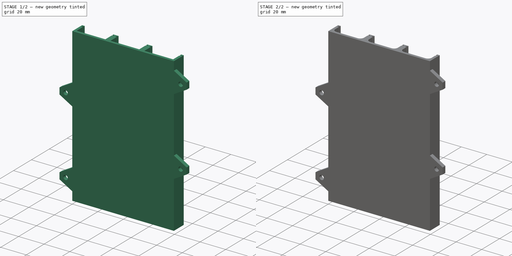
[diagram: build sequence overview — one tinted view per stage of 2, left to right]
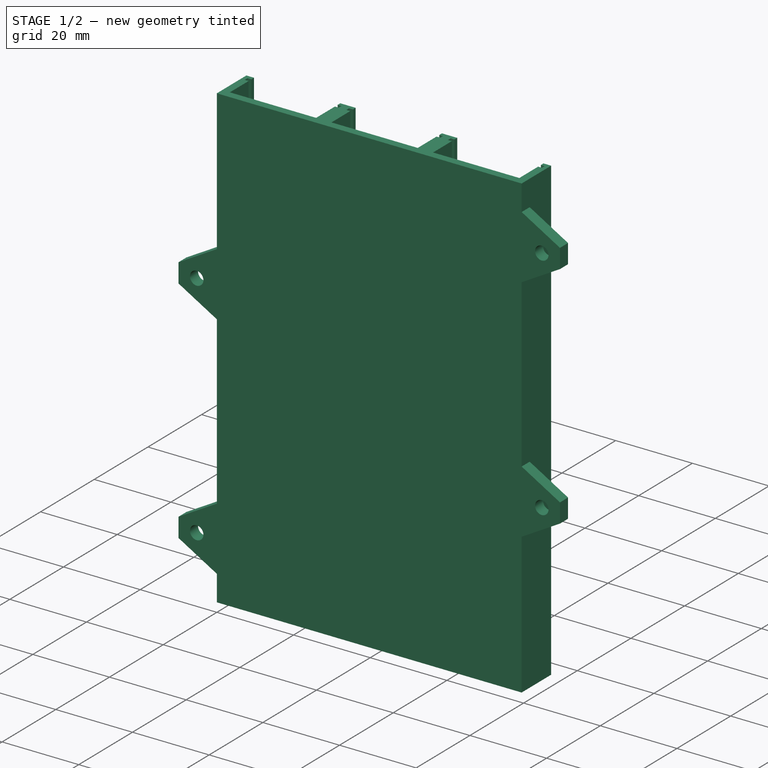
[diagram: stage 1 of 2 — iso view after this stage's code; geometry added in this stage tinted green]
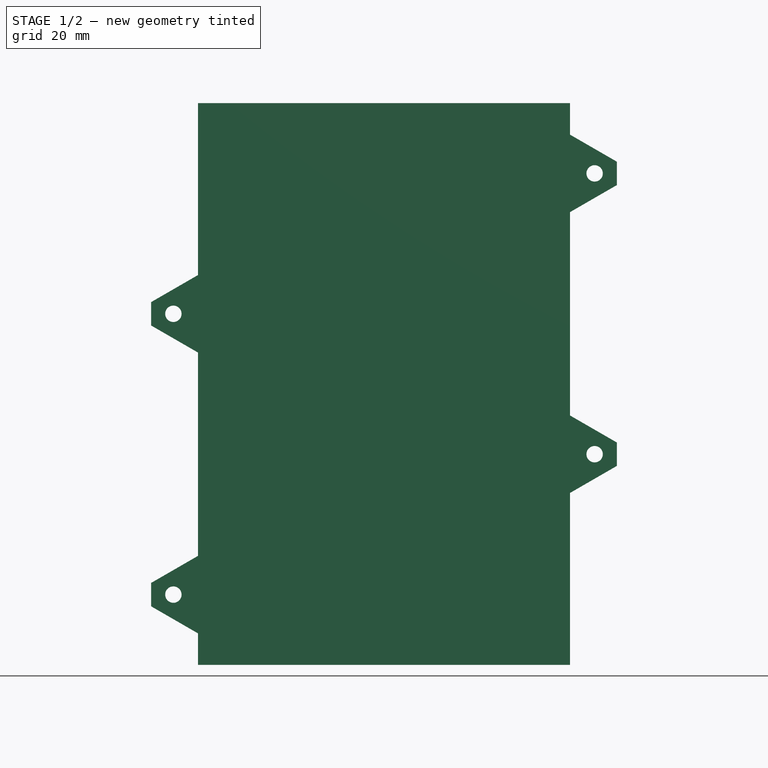
[diagram: stage 1 of 2 — front view after this stage's code; geometry added in this stage tinted green]
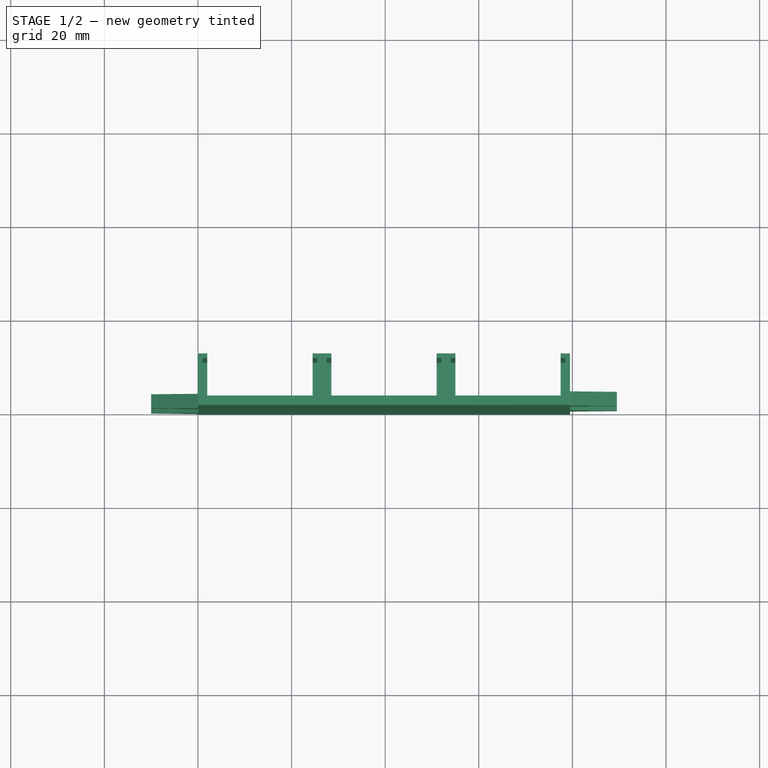
[diagram: stage 1 of 2 — top view after this stage's code; geometry added in this stage tinted green]
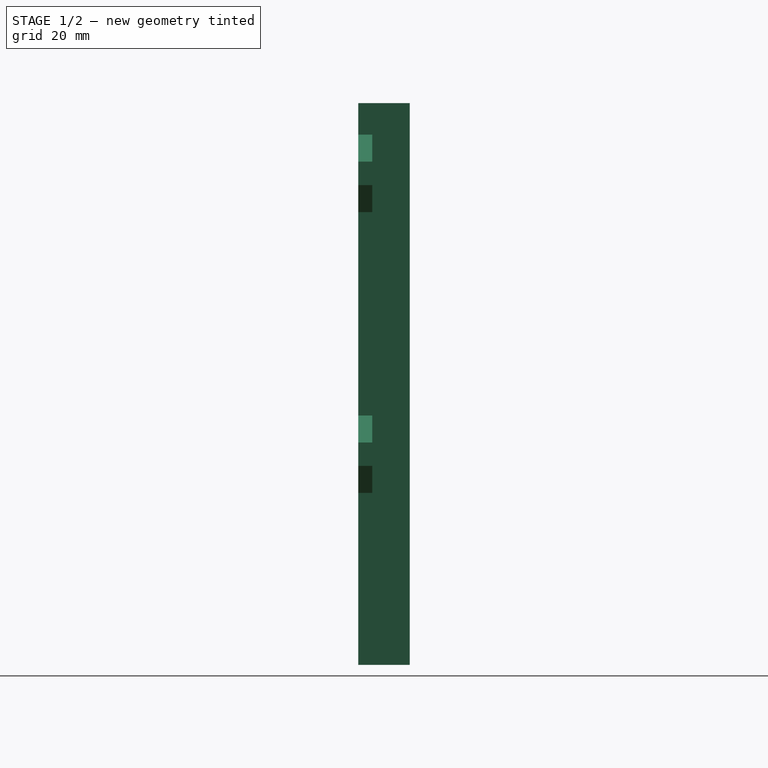
[diagram: stage 1 of 2 — right view after this stage's code; geometry added in this stage tinted green]
FCSTD DOCUMENT  (FreeCAD 0.19R24291 (Git))
Label: FDM-9006_24mm-strip-feeder
License: All rights reserved
LicenseURL: http://en.wikipedia.org/wiki/All_rights_reserved
objects: Sketcher::SketchObject×2, PartDesign::Pad×2, PartDesign::Fillet×1, Part::Part2DObjectPython×1, PartDesign::Plane×1, PartDesign::Body×1
note: 11 computed .brp shape members not serialized (recipe doc carries the construction recipe); baked Part::Feature solids carry a one-line shape summary decoded from their .brp

FEATURE [Sketcher::SketchObject] Sketch
  FullyConstrained = true
  MapMode = 5
  Support = -> [XY_Plane]
  sketch-geometry (40):
    g0: LineSegment StartX=0 StartY=0 StartZ=0 EndX=79.5 EndY=0 EndZ=0
    g1: LineSegment StartX=28.5 StartY=11 StartZ=0 EndX=24.5 EndY=11 EndZ=0
    g2: LineSegment StartX=24.5 StartY=11 StartZ=0 EndX=24.5 EndY=10 EndZ=0
    g3: LineSegment StartX=24.5 StartY=10 StartZ=0 EndX=25.5 EndY=10 EndZ=0
    g4: LineSegment StartX=25.5 StartY=10 StartZ=0 EndX=25.5 EndY=9 EndZ=0
    g5: LineSegment StartX=25.5 StartY=9 StartZ=0 EndX=24.5 EndY=9 EndZ=0
    g6: LineSegment StartX=24.5 StartY=9 StartZ=0 EndX=24.5 EndY=2 EndZ=0
    g7: LineSegment StartX=24.5 StartY=2 StartZ=0 EndX=2 EndY=2 EndZ=0
    g8: LineSegment StartX=2 StartY=2 StartZ=0 EndX=2 EndY=9 EndZ=0
    g9: LineSegment StartX=2 StartY=9 StartZ=0 EndX=1 EndY=9 EndZ=0
    g10: LineSegment StartX=1 StartY=9 StartZ=0 EndX=1 EndY=10 EndZ=0
    g11: LineSegment StartX=1 StartY=10 StartZ=0 EndX=2 EndY=10 EndZ=0
    g12: LineSegment StartX=2 StartY=10 StartZ=0 EndX=2 EndY=11 EndZ=0
    g13: LineSegment StartX=2 StartY=11 StartZ=0 EndX=0 EndY=11 EndZ=0
    g14: LineSegment StartX=0 StartY=11 StartZ=0 EndX=0 EndY=0 EndZ=0
    g15: LineSegment StartX=51 StartY=11 StartZ=0 EndX=51 EndY=10 EndZ=0
    g16: LineSegment StartX=51 StartY=10 StartZ=0 EndX=52 EndY=10 EndZ=0
    g17: LineSegment StartX=52 StartY=10 StartZ=0 EndX=52 EndY=9 EndZ=0
    g18: LineSegment StartX=52 StartY=9 StartZ=0 EndX=51 EndY=9 EndZ=0
    g19: LineSegment StartX=51 StartY=9 StartZ=0 EndX=51 EndY=2 EndZ=0
    g20: LineSegment StartX=51 StartY=2 StartZ=0 EndX=28.5 EndY=2 EndZ=0
    g21: LineSegment StartX=28.5 StartY=2 StartZ=0 EndX=28.5 EndY=9 EndZ=0
    g22: LineSegment StartX=28.5 StartY=9 StartZ=0 EndX=27.5 EndY=9 EndZ=0
    g23: LineSegment StartX=27.5 StartY=9 StartZ=0 EndX=27.5 EndY=10 EndZ=0
    g24: LineSegment StartX=27.5 StartY=10 StartZ=0 EndX=28.5 EndY=10 EndZ=0
    g25: LineSegment StartX=28.5 StartY=10 StartZ=0 EndX=28.5 EndY=11 EndZ=0
    g26: LineSegment StartX=77.5 StartY=11 StartZ=0 EndX=77.5 EndY=10 EndZ=0
    g27: LineSegment StartX=77.5 StartY=10 StartZ=0 EndX=78.5 EndY=10 EndZ=0
    g28: LineSegment StartX=78.5 StartY=10 StartZ=0 EndX=78.5 EndY=9 EndZ=0
    g29: LineSegment StartX=78.5 StartY=9 StartZ=0 EndX=77.5 EndY=9 EndZ=0
    g30: LineSegment StartX=77.5 StartY=9 StartZ=0 EndX=77.5 EndY=2 EndZ=0
    g31: LineSegment StartX=55 StartY=2 StartZ=0 EndX=55 EndY=9 EndZ=0
    g32: LineSegment StartX=55 StartY=9 StartZ=0 EndX=54 EndY=9 EndZ=0
    g33: LineSegment StartX=54 StartY=9 StartZ=0 EndX=54 EndY=10 EndZ=0
    g34: LineSegment StartX=54 StartY=10 StartZ=0 EndX=55 EndY=10 EndZ=0
    g35: LineSegment StartX=55 StartY=10 StartZ=0 EndX=55 EndY=11 EndZ=0
    g36: LineSegment StartX=51 StartY=11 StartZ=0 EndX=55 EndY=11 EndZ=0
    g37: LineSegment StartX=55 StartY=2 StartZ=0 EndX=77.5 EndY=2 EndZ=0
    g38: LineSegment StartX=79.5 StartY=11 StartZ=0 EndX=79.5 EndY=0 EndZ=0
    g39: LineSegment StartX=77.5 StartY=11 StartZ=0 EndX=79.5 EndY=11 EndZ=0
  constraints (119):
    c: Coincident(g-1,g0)
    c: PointOnObject(g0,g-1)
    c: Horizontal(g1)
    c: Vertical(g2)
    c: Coincident(g2,g3)
    c: Horizontal(g3)
    c: Coincident(g3,g4)
    c: Vertical(g4)
    c: Coincident(g4,g5)
    c: Horizontal(g5)
    c: Coincident(g5,g6)
    c: Vertical(g6)
    c: Coincident(g6,g7)
    c: Horizontal(g7)
    c: Coincident(g7,g8)
    c: Vertical(g8)
    c: Coincident(g8,g9)
    c: Horizontal(g9)
    c: Coincident(g9,g10)
    c: Vertical(g10)
    c: Coincident(g10,g11)
    c: Coincident(g11,g12)
    c: Vertical(g12)
    c: Coincident(g12,g13)
    c: PointOnObject(g13,g-2)
    c: Horizontal(g13)
    c: Coincident(g13,g14)
    c: Coincident(g14,g0)
    c: Horizontal(g11)
    c: DistanceY(g0,g10) = 10
    c: DistanceY(g0,g13) = 11
    c: PointOnObject(g1,g13)
    c: PointOnObject(g2,g11)
    c: DistanceY(g10,g10) = 1
    c: PointOnObject(g5,g9)
    c: PointOnObject(g11,g8)
    c: PointOnObject(g2,g6)
    c: DistanceX(g10,g12) = 1
    c: DistanceY(g7,g11) = 8
    c: DistanceX(g9,g4) = 24.5
    c: DistanceX(g5,g5) = 1
    c: DistanceX(g13,g13) = 2
    c: Vertical(g15)
    c: Coincident(g15,g16)
    c: Horizontal(g16)
    c: Coincident(g16,g17)
    c: Vertical(g17)
    c: Coincident(g17,g18)
    c: Horizontal(g18)
    c: Coincident(g18,g19)
    c: Vertical(g19)
    c: Coincident(g19,g20)
    c: Horizontal(g20)
    c: Coincident(g20,g21)
    c: Vertical(g21)
    c: Coincident(g21,g22)
    c: Horizontal(g22)
    c: Coincident(g22,g23)
    c: Vertical(g23)
    c: Coincident(g23,g24)
    c: Coincident(g24,g25)
    c: Vertical(g25)
    c: Horizontal(g24)
    c: PointOnObject(g15,g24)
    c: Equal(g10,g23) = 1
    c: PointOnObject(g18,g22)
    c: PointOnObject(g24,g21)
    c: PointOnObject(g15,g19)
    c: DistanceX(g23,g25) = 1
    c: DistanceY(g20,g24) = 8
    c: DistanceX(g22,g17) = 24.5
    c: Equal(g5,g18) = 1
    c: Coincident(g1,g2)
    c: Coincident(g1,g25)
    c: PointOnObject(g23,g3)
    c: PointOnObject(g15,g1)
    c: DistanceX(g1,g1) = 4
    c: Vertical(g26)
    c: Coincident(g26,g27)
    c: Horizontal(g27)
    c: Coincident(g27,g28)
    c: Vertical(g28)
    c: Coincident(g28,g29)
    c: Horizontal(g29)
    c: Coincident(g29,g30)
    c: Vertical(g30)
    c: PointOnObject(g26,g30)
    c: Equal(g5,g29) = 1
    c: Vertical(g31)
    c: Coincident(g31,g32)
    c: Horizontal(g32)
    c: Coincident(g32,g33)
    c: Vertical(g33)
    c: Coincident(g33,g34)
    c: Coincident(g34,g35)
    c: Vertical(g35)
    c: Horizontal(g34)
    c: PointOnObject(g34,g31)
    c: DistanceX(g33,g35) = 1
    c: Coincident(g36,g15)
    c: Coincident(g36,g35)
    c: Horizontal(g36)
    c: Coincident(g37,g31)
    c: Coincident(g37,g30)
    c: Horizontal(g37)
    c: PointOnObject(g31,g20)
    c: PointOnObject(g32,g18)
    c: PointOnObject(g33,g16)
    c: PointOnObject(g29,g32)
    c: PointOnObject(g26,g34)
    c: DistanceX(g33,g27) = 24.5
    c: DistanceX(g36,g36) = 4
    c: PointOnObject(g26,g36)
    c: Coincident(g38,g0)
    c: Vertical(g38)
    c: Coincident(g39,g26)
    c: Coincident(g39,g38)
    c: Horizontal(g39)
    c: DistanceX(g39,g39) = 2
FEATURE [PartDesign::Pad] Pad
  Direction = (1,1,1)
  Length = 120
  Length2 = 100
  Profile = -> Sketch
  Type = 0
FEATURE [Sketcher::SketchObject] Sketch001
  FullyConstrained = true
  MapMode = 5
  Placement = pos=(0,0,0) rot=(1,0,0;1.5708rad)
  Support = -> [XZ_Plane]
  sketch-geometry (29):
    g0: Circle CenterX=-5.25 CenterY=15 CenterZ=0 NormalX=0 NormalY=0 NormalZ=1 AngleXU=0 Radius=1.75
    g1: Circle CenterX=-5.25 CenterY=75 CenterZ=0 NormalX=0 NormalY=0 NormalZ=1 AngleXU=0 Radius=1.75
    g2: Circle CenterX=84.75 CenterY=105 CenterZ=0 NormalX=0 NormalY=0 NormalZ=1 AngleXU=0 Radius=1.75
    g3: Circle CenterX=84.75 CenterY=45 CenterZ=0 NormalX=0 NormalY=0 NormalZ=1 AngleXU=0 Radius=1.75
    g4: LineSegment StartX=-5.25 StartY=75 StartZ=0 EndX=84.75 EndY=75 EndZ=0
    g5: LineSegment StartX=84.75 StartY=75 StartZ=0 EndX=84.75 EndY=15 EndZ=0
    g6: LineSegment StartX=84.75 StartY=15 StartZ=0 EndX=-5.25 EndY=15 EndZ=0
    g7: LineSegment StartX=-5.25 StartY=15 StartZ=0 EndX=-5.25 EndY=75 EndZ=0
    g8: LineSegment StartX=0 StartY=6.7265 StartZ=0 EndX=-10 EndY=12.5 EndZ=0
    g9: LineSegment StartX=-10 StartY=12.5 StartZ=0 EndX=-10 EndY=17.5 EndZ=0
    g10: LineSegment StartX=-10 StartY=17.5 StartZ=0 EndX=0 EndY=23.2735 EndZ=0
    g11: LineSegment StartX=0 StartY=23.2735 StartZ=0 EndX=0 EndY=6.7265 EndZ=0
    g12: LineSegment StartX=0 StartY=66.7265 StartZ=0 EndX=-10 EndY=72.5 EndZ=0
    g13: LineSegment StartX=-10 StartY=72.5 StartZ=0 EndX=-10 EndY=77.5 EndZ=0
    g14: LineSegment StartX=-10 StartY=77.5 StartZ=0 EndX=0 EndY=83.2735 EndZ=0
    g15: LineSegment StartX=0 StartY=83.2735 StartZ=0 EndX=0 EndY=66.7265 EndZ=0
    g16: LineSegment StartX=79.5 StartY=36.7265 StartZ=0 EndX=89.5 EndY=42.5 EndZ=0
    g17: LineSegment StartX=89.5 StartY=42.5 StartZ=0 EndX=89.5 EndY=47.5 EndZ=0
    g18: LineSegment StartX=89.5 StartY=47.5 StartZ=0 EndX=79.5 EndY=53.2735 EndZ=0
    g19: LineSegment StartX=79.5 StartY=53.2735 StartZ=0 EndX=79.5 EndY=36.7265 EndZ=0
    g20: LineSegment StartX=79.5 StartY=96.7265 StartZ=0 EndX=89.5 EndY=102.5 EndZ=0
    g21: LineSegment StartX=89.5 StartY=102.5 StartZ=0 EndX=89.5 EndY=107.5 EndZ=0
    g22: LineSegment StartX=89.5 StartY=107.5 StartZ=0 EndX=79.5 EndY=113.274 EndZ=0
    g23: LineSegment StartX=-5.25 StartY=15 StartZ=0 EndX=-10 EndY=15 EndZ=0
    g24: LineSegment StartX=79.5 StartY=113.274 StartZ=0 EndX=79.5 EndY=96.7265 EndZ=0
    g25: LineSegment StartX=-5.25 StartY=45 StartZ=0 EndX=84.75 EndY=45 EndZ=0
    g26: LineSegment StartX=84.75 StartY=45 StartZ=0 EndX=84.75 EndY=105 EndZ=0
    g27: LineSegment StartX=84.75 StartY=105 StartZ=0 EndX=-5.25 EndY=105 EndZ=0
    g28: LineSegment StartX=-5.25 StartY=105 StartZ=0 EndX=-5.25 EndY=45 EndZ=0
  constraints (82):
    c: Diameter(g2) = 3.5
    c: Diameter(g1) = 3.5
    c: Diameter(g0) = 3.5
    c: Diameter(g3) = 3.5
    c: Horizontal(g4)
    c: Horizontal(g6)
    c: Vertical(g5)
    c: Vertical(g7)
    c: DistanceX(g4,g4) = 90
    c: DistanceY(g7,g7) = 60
    c: Coincident(g1,g4)
    c: Coincident(g1,g7)
    c: Coincident(g7,g6)
    c: Coincident(g0,g6)
    c: DistanceX(g0,g-1) = 5.25
    c: Coincident(g8,g9)
    c: Vertical(g9)
    c: Coincident(g9,g10)
    c: Coincident(g10,g11)
    c: Coincident(g11,g8)
    c: Vertical(g11)
    c: Angle(g10,g11) = 1.0472
    c: Angle(g11,g8) = 1.0472
    c: DistanceX(g8,g8) = 10
    c: DistanceY(g9,g9) = 5
    c: PointOnObject(g12,g-2)
    c: Coincident(g12,g13)
    c: Vertical(g13)
    c: Coincident(g13,g14)
    c: PointOnObject(g14,g-2)
    c: Coincident(g14,g15)
    c: Coincident(g15,g12)
    c: DistanceY(g13,g13) = 5
    c: DistanceX(g13,g14) = 10
    c: Coincident(g16,g17)
    c: Vertical(g17)
    c: Coincident(g17,g18)
    c: Coincident(g18,g19)
    c: Coincident(g19,g16)
    c: Vertical(g19)
    c: Coincident(g20,g21)
    c: Vertical(g21)
    c: Coincident(g21,g22)
    c: DistanceX(g20,g2) = 5.25
    c: DistanceX(g20,g20) = 10
    c: DistanceX(g18,g3) = 5.25
    c: DistanceY(g21,g21) = 5
    c: DistanceY(g16,g3) = 2.5
    c: DistanceY(g20,g2) = 2.5
    c: Angle(g16,g19) = 1.0472
    c: Angle(g19,g18) = 1.0472
    c: DistanceY(g17,g17) = 5
    c: DistanceX(g18,g17) = 10
    c: Equal(g14,g12)
    c: DistanceY(g1,g13) = 2.5
    c: Coincident(g23,g0)
    c: PointOnObject(g23,g9)
    c: Symmetric(g9,g8,g23)
    c: Angle(g14,g15) = 1.0472
    c: Coincident(g24,g22)
    c: Coincident(g24,g20)
    c: Vertical(g24)
    c: Angle(g24,g22) = 1.0472
    c: Angle(g20,g24) = 1.0472
    c: PointOnObject(g8,g-2)
    c: DistanceY(g-1,g0) = 15
    c: Coincident(g25,g26)
    c: Coincident(g26,g27)
    c: Coincident(g27,g28)
    c: Coincident(g28,g25)
    c: Horizontal(g25)
    c: Horizontal(g27)
    c: Vertical(g26)
    c: Vertical(g28)
    c: PointOnObject(g25,g7)
    c: DistanceY(g26,g26) = 60
    c: DistanceY(g25,g1) = 30
    c: PointOnObject(g25,g5)
    c: Coincident(g5,g6)
    c: Coincident(g3,g25)
    c: Coincident(g2,g26)
    c: Coincident(g4,g5)
FEATURE [PartDesign::Pad] Pad001
  BaseFeature = -> Pad
  Direction = (1,1,1)
  Length = 3
  Length2 = 100
  Profile = -> Sketch001
  Reversed = true
  Type = 0
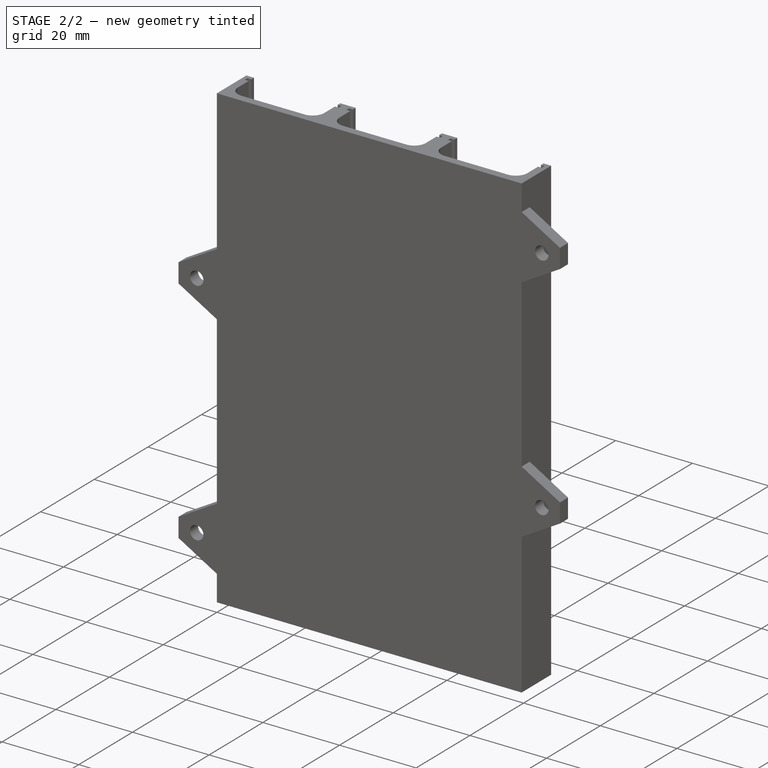
[diagram: stage 2 of 2 — iso view after this stage's code; geometry added in this stage tinted green]
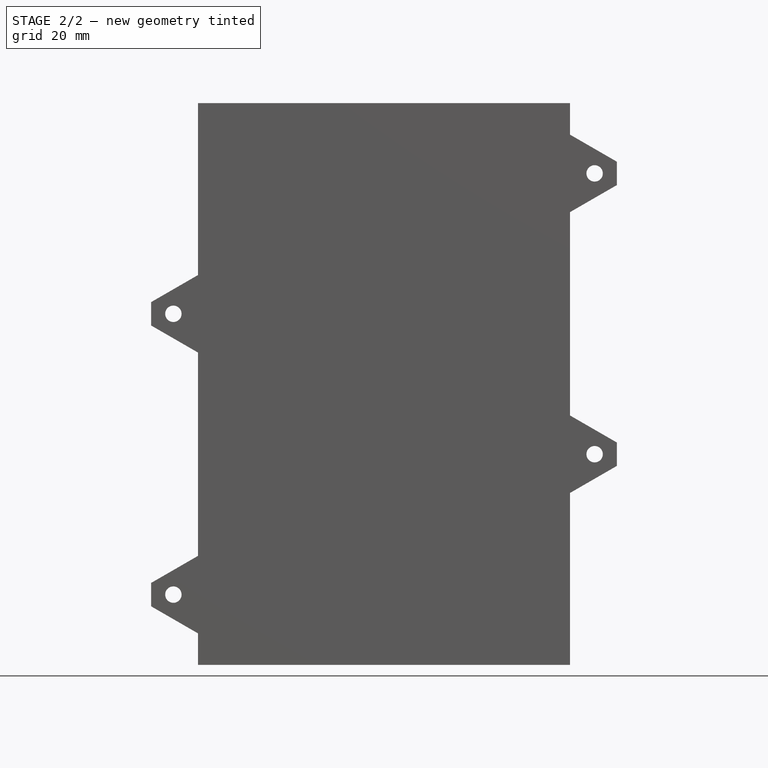
[diagram: stage 2 of 2 — front view after this stage's code; geometry added in this stage tinted green]
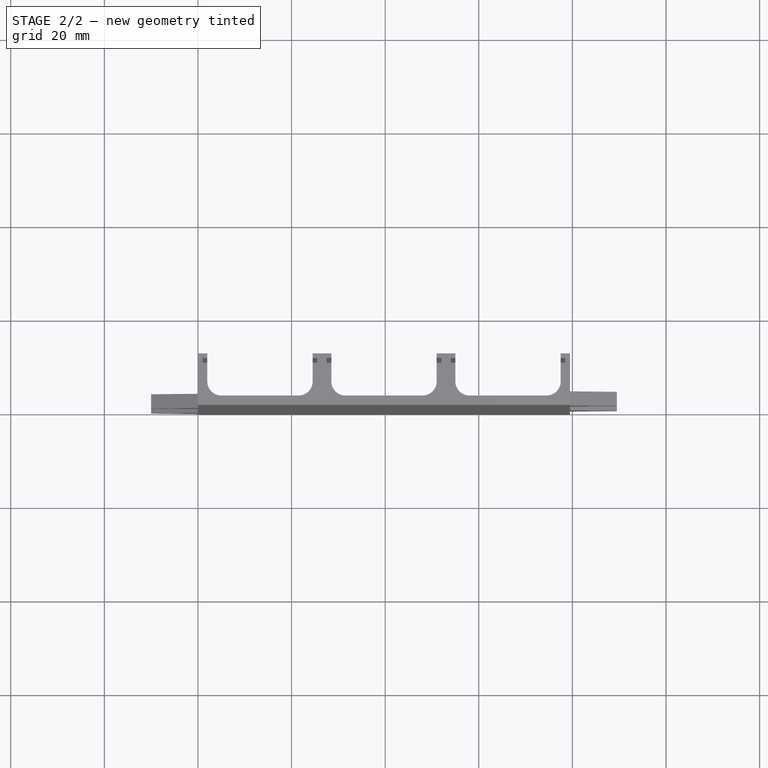
[diagram: stage 2 of 2 — top view after this stage's code; geometry added in this stage tinted green]
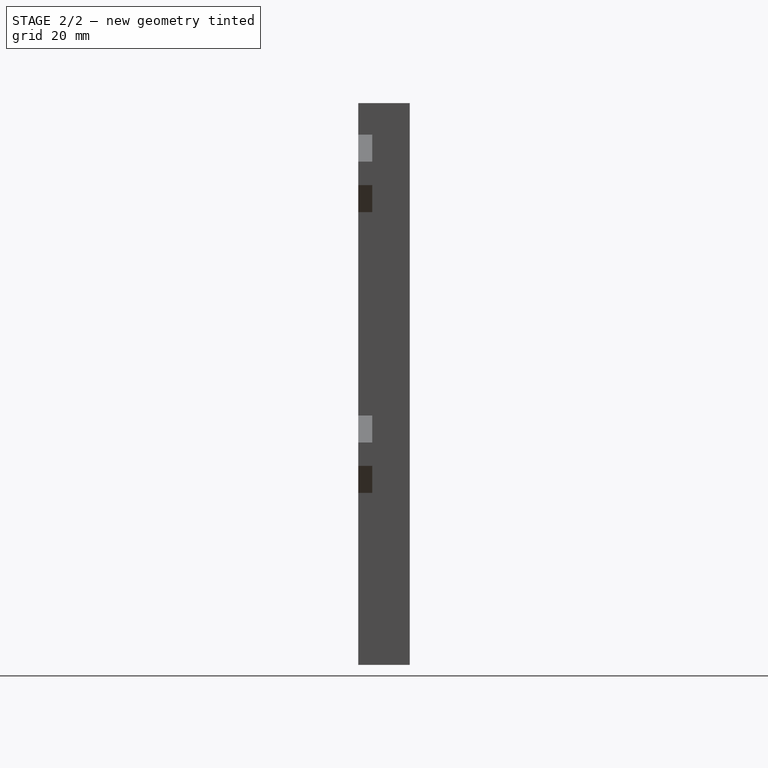
[diagram: stage 2 of 2 — right view after this stage's code; geometry added in this stage tinted green]
FEATURE [PartDesign::Fillet] Fillet
  Base = -> Pad001 [Edge101,Edge89,Edge137,Edge100,Edge88,Edge136]
  BaseFeature = -> Pad001
  Radius = 3
  SupportTransform = false
FEATURE [Part::Part2DObjectPython] ShapeString001  label="PN"  # Draft 2D object (typed FeaturePython)
  FontFile = ../../lib/fonts/RobotoMono-VariableFont_weight.ttf
  Size = 5
  String = FDM-9006-01
  Tracking = 0
FEATURE [PartDesign::Plane] DatumPlane  label="PrintPlane"
  Length = 129.633
  MapMode = 5
  Placement = pos=(0,0,0) rot=(1,0,0;3.14159rad)
  ResizeMode = 0
  Support = -> [Fillet]
  Width = 65.1327
FEATURE [PartDesign::Body] Body
  Group = -> [Sketch,Pad,Sketch001,Pad001,Fillet,ShapeString001,DatumPlane]
  Origin = -> Origin
  Tip = -> Fillet
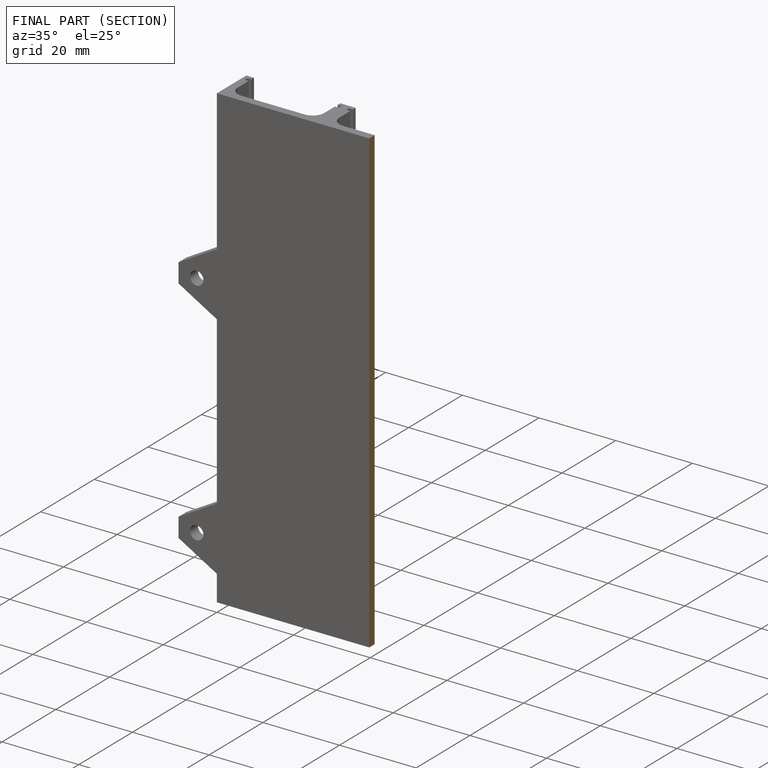
[diagram: finished part — half-section view (interior)]
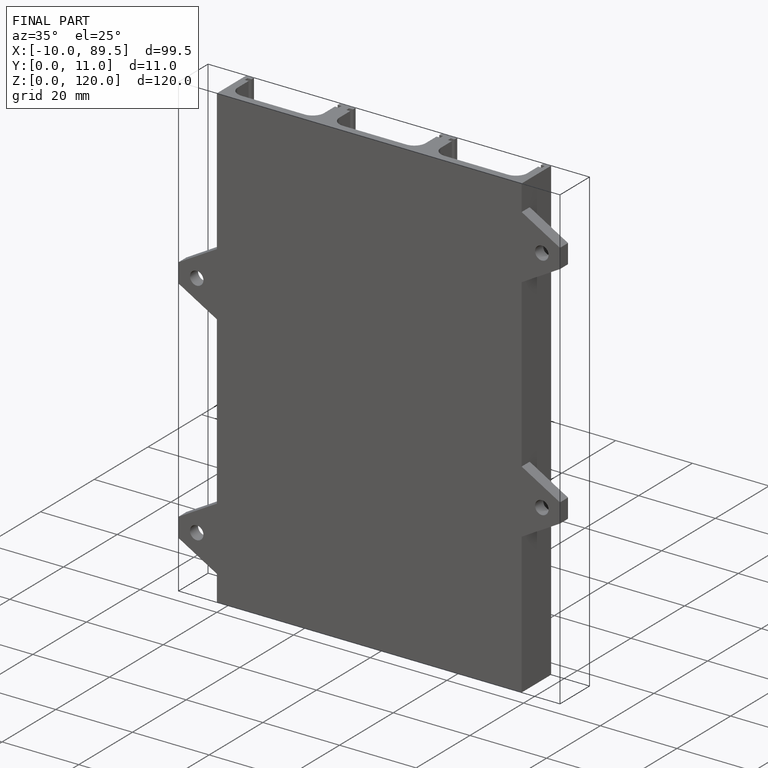
[diagram: finished part — iso view with bounding-box wireframe]
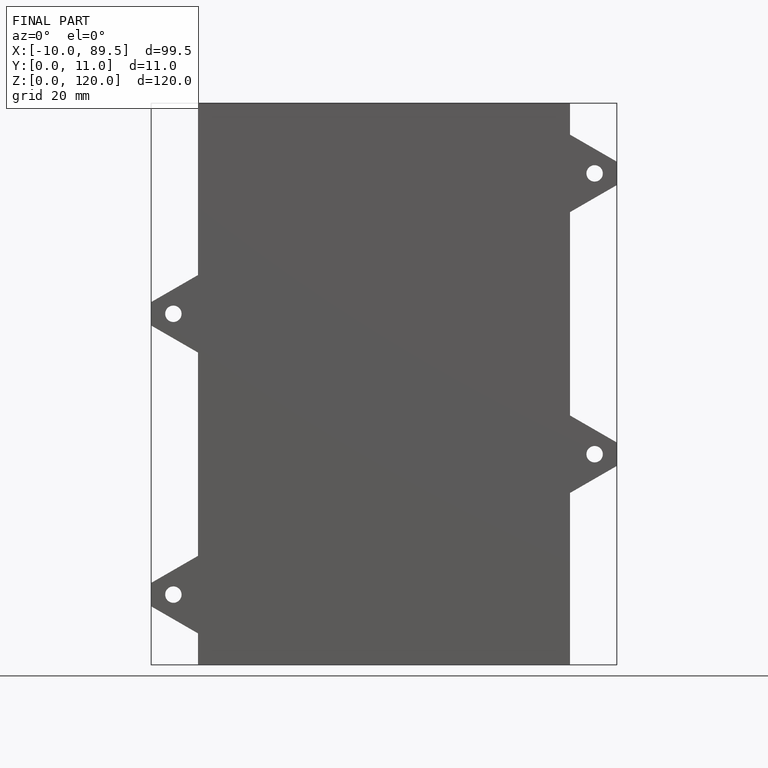
[diagram: finished part — front view with bounding-box wireframe]
